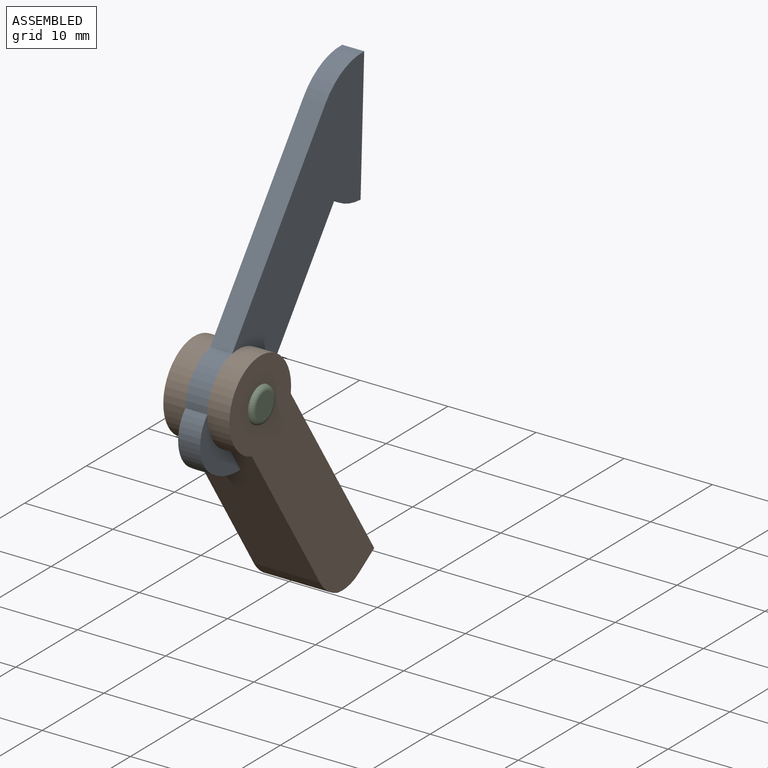
[diagram: assembled view]
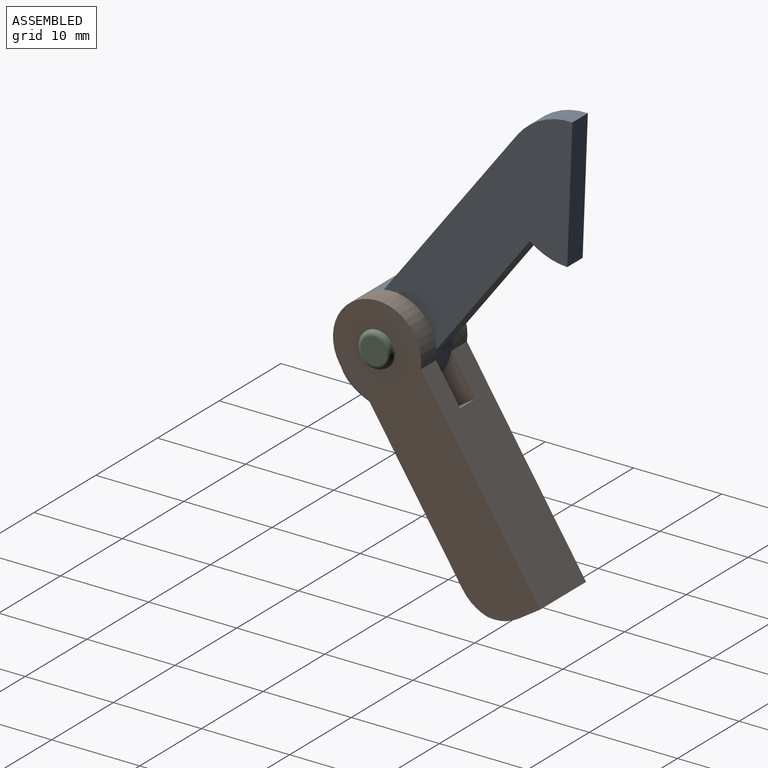
[diagram: assembled view, second angle]
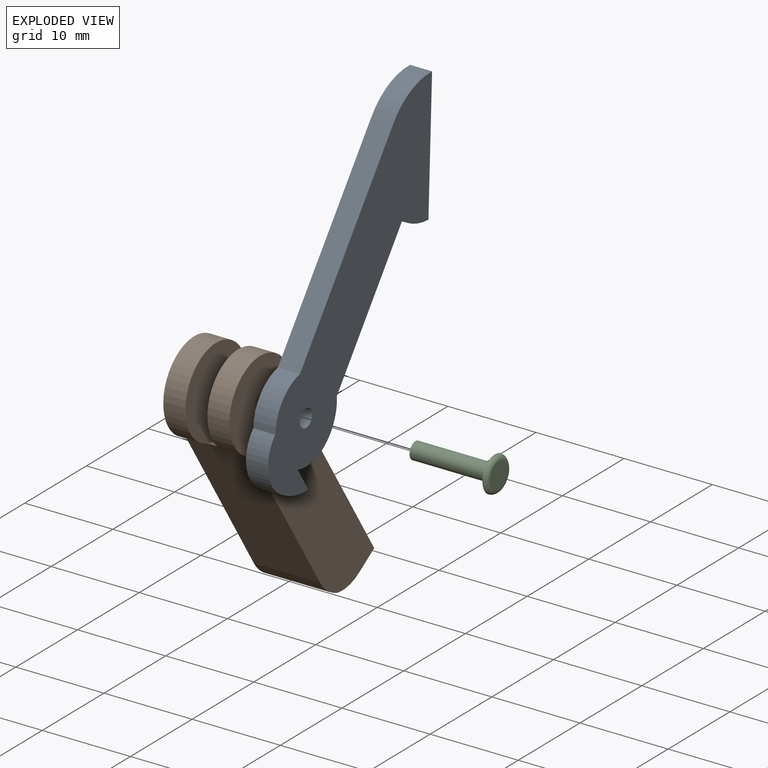
[diagram: exploded view]
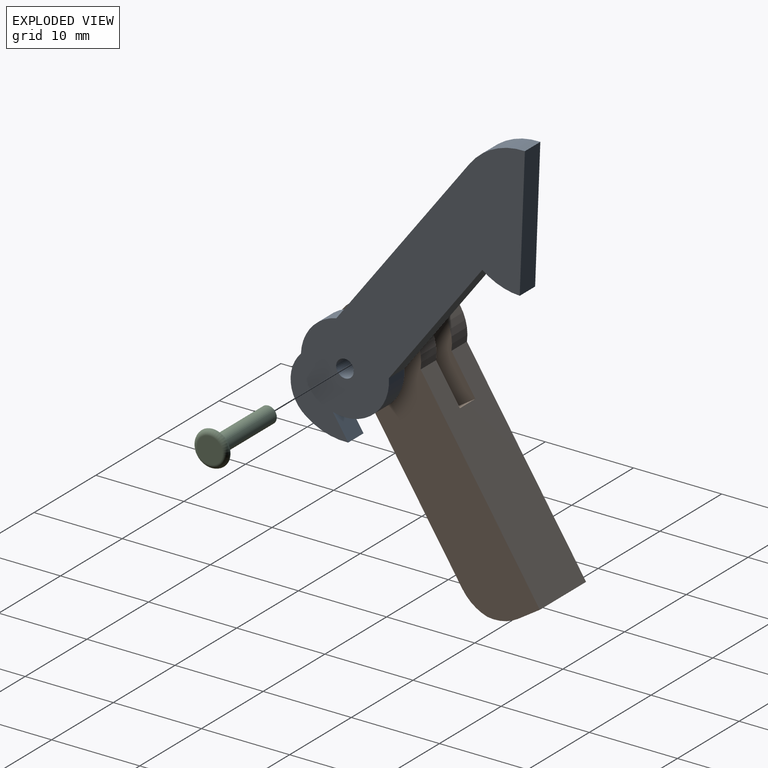
[diagram: exploded view, second angle]
ASSEMBLY  parts=3 mates=2
PART A: 13 faces, bbox 2.5x25.4x36 mm
  f0: cylinder r=5mm len=6.18mm, axis (-1,0,0), area 24mm2, adj f1,f4,f5,f12
  f1: plane 14.34x10.04mm, normal (0,0.82,-0.57), area 43.8mm2, adj f0,f4,f5,f9
  f2: plane 20.48x14.34mm, normal (0,-0.82,0.57), area 62.5mm2, adj f3,f4,f5,f7
  f3: cylinder r=5mm len=4.86mm, axis (-1,0,0), area 16.7mm2, adj f2,f4,f5,f10
  f4: plane 36.04x25.37mm, normal (1,0,0), area 316.6mm2, adj f0,f1,f2,f3,f6,f7,f8,f9
  f5: plane 36.04x25.37mm, normal (-1,0,0), area 316.6mm2, adj f0,f1,f2,f3,f6,f7,f8,f9
  f6: cylinder r=1mm len=2.5mm, axis (1,0,0), area 15.7mm2, adj f4,f5
  f7: cylinder r=7.5mm len=6.14mm, axis (1,0,0), area 18mm2, adj f2,f4,f5,f8
  f8: plane 15x2.5mm, normal (0,1,0), area 37.5mm2, adj f4,f5,f7,f9
  f9: cylinder r=7.5mm len=4.3mm, axis (-1,0,0), area 11.5mm2, adj f1,f4,f5,f8
  f10: cylinder r=4.13mm len=6.22mm, axis (1,0,0), area 17.8mm2, adj f3,f4,f5,f11
  f11: cylinder r=7.5mm len=4.84mm, axis (1,0,0), area 12.7mm2, adj f4,f5,f10,f12
  f12: plane 2.61x2.5mm, normal (0,0.82,0.57), area 8mm2, adj f0,f4,f5,f11
PART B: 16 faces, bbox 7.5x24.3x28.6 mm
  f0: cylinder r=5mm len=2.93mm, axis (1,0,0), area 7.4mm2, adj f4,f8,f9,f12
  f1: cylinder r=5mm len=10mm, axis (-1,0,0), area 57.3mm2, adj f2,f4,f7,f8
  f2: plane 20.48x14.34mm, normal (0,0.82,0.57), area 175mm2, adj f1,f3,f5,f6,f7,f8,f9,f13
  f3: cylinder r=5mm len=10mm, axis (-1,0,0), area 57.3mm2, adj f2,f4,f6,f9
  f4: plane 16.73x11.72mm, normal (0,-0.82,-0.57), area 153.2mm2, adj f0,f1,f3,f6,f7,f15
  f5: plane 7.5x2.4mm, normal (0,0.57,-0.82), area 22mm2, adj f2,f6,f7,f14
  f6: plane 28.62x24.31mm, normal (1,0,0), area 249.9mm2, adj f2,f3,f4,f5,f11,f14,f15
  f7: plane 28.62x24.31mm, normal (-1,0,0), area 249.9mm2, adj f1,f2,f4,f5,f10,f14,f15
  f8: plane 12.84x12.52mm, normal (1,0,0), area 93.9mm2, adj f0,f1,f2,f10,f12,f13
  f9: plane 12.84x12.52mm, normal (-1,0,0), area 93.9mm2, adj f0,f2,f3,f11,f12,f13
  f10: cylinder r=1mm len=2.5mm, axis (1,0,0), area 15.7mm2, adj f7,f8
  f11: cylinder r=1mm len=2.5mm, axis (-1,0,0), area 15.7mm2, adj f6,f9
  f12: plane 2.84x2.5mm, normal (0,0.82,0.57), area 8.7mm2, adj f0,f8,f9,f13
  f13: plane 4.1x2.87mm, normal (0,-0.57,0.82), area 12.5mm2, adj f2,f8,f9,f12
  f14: cylinder r=5mm len=7.5mm, axis (-1,0,0), area 27.2mm2, adj f5,f6,f7,f15
  f15: cylinder r=5mm len=7.5mm, axis (1,0,0), area 27.2mm2, adj f4,f6,f7,f14
PART C: 6 faces, bbox 4.3x4.3x9.5 mm
  f0: cylinder r=0.95mm len=8.75mm, axis (0,0,-1), area 52.2mm2, adj f1,f4
  f1: plane 1.9x1.9mm, normal (0,0,-1), area 2.8mm2, adj f0
  f2: plane 2.9x2.9mm, normal (0,0,1), area 6.6mm2, adj f5
  f3: plane 4x4mm, normal (0,0,-1), area 8mm2, adj f4,f5
  f4: torus R=1.2mm, axis (0,0,1), area 2.6mm2, adj f0,f3
  f5: torus R=1.45mm, axis (0,0,-1), area 9.2mm2, adj f2,f3
PLACE A rot(axis=(-1,0,0),2.3deg) t=(-7.45,-3.67,-3.71)mm fixed
PLACE B rot(axis=(-1,0,0),2.3deg) t=(-7.45,-3.67,-3.71)mm
PLACE C rot(axis=(-0.58,0.56,-0.58),121.3deg) t=(-8.2,-3.67,-3.71)mm
MATE revolute A.f0 <-> B.f10  axis (-1,0,0) through (-8.7,-3.67,-3.71)mm
MATE slider C.f0 <-> B.f10  axis (-1,0,0) through (-12.7,-3.67,-3.71)mm
